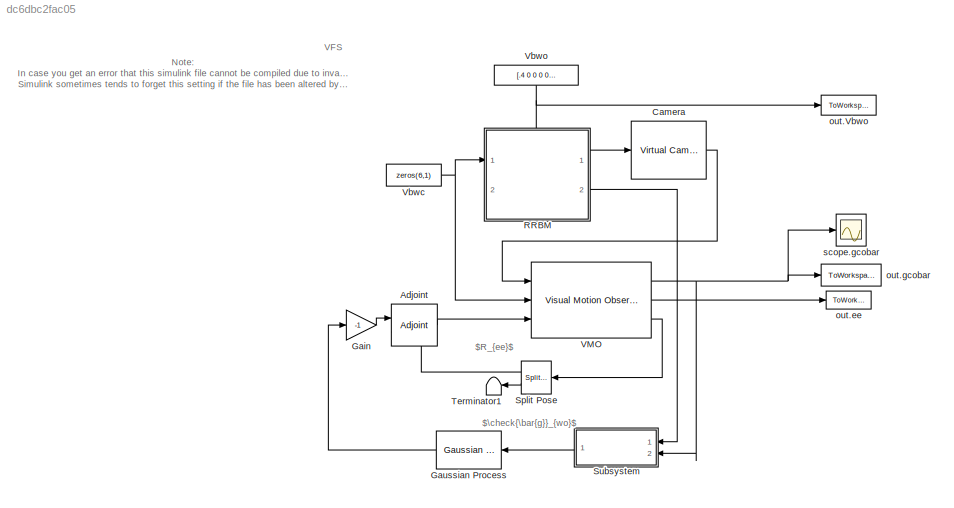
MODEL slx_dc6dbc2fac05
KIND model
CONFIG AbsTol = auto
CONFIG EnableMultiTasking = off
CONFIG FixedStep = 0.001
CONFIG MaxStep = auto
CONFIG MinStep = auto
CONFIG RelTol = 1e-3
CONFIG SampleTimeConstraint = Unconstrained
CONFIG SolverName = VariableStepAuto
CONFIG StartTime = 0.0
CONFIG StopTime = 20
WORKSPACE source: mxarray member
WORKSPACE lambda = 20
WORKSPACE po = [0 0.5 0 -0.5 0 0 0 0 0.5 0 -0.5 0]
BLOCK [Reference] Adjoint  REF=simlib_vpc_basic/Adjoint
  NameLocation = top
  Ports = [2, 1]
  SourceBlock = simlib_vpc_basic/Adjoint
  SourceProductName = VPC Library
  SourceType = Adjoint Matrix [V1]
BLOCK [Reference] Camera  REF=simlib_vpc_basic/Virtual Camera
  Ports = [1, 1]
  SourceBlock = simlib_vpc_basic/Virtual Camera
  SourceProductName = VPC Library
  SourceType = Virtual Camera model [V1]
BLOCK [Gain] Gain
  Gain = -1
BLOCK [Reference] Gaussian Process  REF=simlib_vpc_gp/Gaussian Process
  NameLocation = top
  Ports = [1, 1]
  SourceBlock = simlib_vpc_gp/Gaussian Process
  SourceProductName = VPC Library
  SourceType = Gaussian Process [V1]
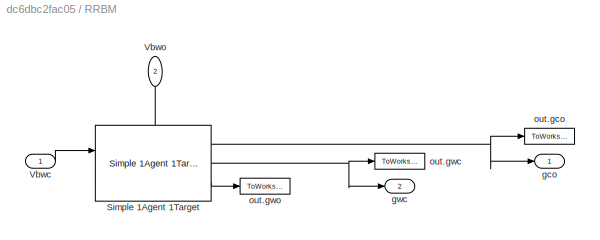
BLOCK [SubSystem] RRBM
  PortSchema = {"entries":[{"content":{"sides":[{"content":{"connectorIds":["In1"]},"type":"ConnectorPlacement.EquallySpacedRectSide","uuid":"ce1006a6-ff18-4db7-ad69-3a60144a672f"},{"content":{"connectorIds":["Out1","Out2"],"side":"RIGHT"},"type":"ConnectorPlacement.EquallySpacedRectSide","uuid":"9f6b7cf2-eb23-4db0-862a-f9244538bf77"},{"content":{"connectorIds":["In2"],"side":"TOP"},"type":"ConnectorPlacement.Eq...<+396ch>
  Ports = [2, 2]
  RequestExecContextInheritance = off
BLOCK [Reference] RRBM/Simple 1Agent 1Target  REF=simlib_vpc_basic/Simple 1Agent 1Target
  Ports = [2, 3]
  SourceBlock = simlib_vpc_basic/Simple 1Agent 1Target
  SourceProductName = VPC Library
  SourceType = Simple 1Agent 1 Target block [V1]
BLOCK [Inport] RRBM/Vbwc
BLOCK [Inport] RRBM/Vbwo
  NameLocation = left
  Port = 2
BLOCK [Outport] RRBM/gco
  NameLocation = right
BLOCK [Outport] RRBM/gwc
  NameLocation = right
  Port = 2
BLOCK [ToWorkspace] RRBM/out.gco
  FixptAsFi = on
  MaxDataPoints = inf
  NameLocation = right
  Ports = [1]
  SampleTime = -1
  SaveFormat = Structure With Time
  VariableName = gco
BLOCK [ToWorkspace] RRBM/out.gwc
  FixptAsFi = on
  MaxDataPoints = inf
  NameLocation = right
  Ports = [1]
  SampleTime = -1
  SaveFormat = Structure With Time
  VariableName = gwc
BLOCK [ToWorkspace] RRBM/out.gwo
  FixptAsFi = on
  MaxDataPoints = inf
  NameLocation = right
  Ports = [1]
  SampleTime = -1
  SaveFormat = Structure With Time
  VariableName = gwo
BLOCK [Reference] Split Pose  REF=simlib_vpc_coremath/Split Pose
  NameLocation = top
  Ports = [1, 2]
  SourceBlock = simlib_vpc_coremath/Split Pose
  SourceProductName = VPC Library
  SourceType = Split pose [V1]
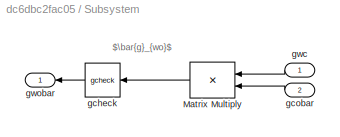
BLOCK [SubSystem] Subsystem
  Ports = [2, 1]
  RequestExecContextInheritance = off
BLOCK [Product] Subsystem/Matrix Multiply
  Multiplication = Matrix(*)
  NameLocation = top
  Ports = [2, 1]
BLOCK [Reference] Subsystem/gcheck  REF=simlib_vpc_coremath/gcheck
  Ports = [1, 1]
  SourceBlock = simlib_vpc_coremath/gcheck
  SourceProductName = VPC Library
  SourceType = Check Transform [V1]
BLOCK [Inport] Subsystem/gcobar
  NameLocation = right
  Port = 2
BLOCK [Inport] Subsystem/gwc
  NameLocation = right
BLOCK [Outport] Subsystem/gwobar
BLOCK [Terminator] Terminator1
BLOCK [Reference] VMO  REF=simlib_vpc_basic/Visual Motion Observer
  Ports = [3, 3]
  SourceBlock = simlib_vpc_basic/Visual Motion Observer
  SourceProductName = VPC Library
  SourceType = Visual Motion Observer [V1]
BLOCK [Constant] Vbwc
  Value = zeros(6,1)
BLOCK [Constant] Vbwo
  NameLocation = right
  Value = [.4 0 0 0 0 -pi/6]
BLOCK [ToWorkspace] out.Vbwo
  FixptAsFi = on
  MaxDataPoints = inf
  NameLocation = right
  Ports = [1]
  SampleTime = -1
  SaveFormat = Structure With Time
  VariableName = Vbwo
BLOCK [ToWorkspace] out.ee
  FixptAsFi = on
  MaxDataPoints = inf
  NameLocation = right
  Ports = [1]
  SampleTime = -1
  SaveFormat = Structure With Time
  VariableName = ee
BLOCK [ToWorkspace] out.gcobar
  FixptAsFi = on
  MaxDataPoints = inf
  NameLocation = right
  Ports = [1]
  SampleTime = -1
  SaveFormat = Structure With Time
  VariableName = gcobar
BLOCK [Scope] scope.gcobar
  Floating = off
  NameLocation = right
  NumInputPorts = 1
  Ports = [1]
  ScopeSpecificationString = Simulink.scopes.TimeScopeBlockCfg('CurrentConfiguration', extmgr.ConfigurationSet(extmgr.Configuration('Core','General UI',true),extmgr.Configuration('Core','Source UI',true),extmgr.Configuration('Sources','WiredSimulink',true),extmgr.Configuration('Visuals','Time Domain',true,'SerializedDisplays',{struct('MinYLimReal','-44571.05179','MaxYLimReal','401135.54571','YLabelReal','','MinYLimMag','   0....<+1871ch>
ANNOTATION (root): Note: In case you get an error that this simulink file cannot be compiled due to invalid constructs used in the GP block, ensure that the GP block inherits the fastest discrete sample time if you use a variable step solver! Simulink sometimes tends to forget this setting if the file has been altered by library block updates...
ANNOTATION (root): $R_{ee}$
ANNOTATION (root): $\check{\bar{g}}_{wo}$
ANNOTATION (root): VFS
ANNOTATION Subsystem: $\bar{g}_{wo}$
LINE Adjoint:1 -> VMO:3
LINE Camera:1 -> VMO:1
LINE Gain:1 -> Adjoint:1
LINE Gaussian Process:1 -> Gain:1
NET RRBM/Simple 1Agent 1Target:1 -> RRBM/gco:1, RRBM/out.gco:1
NET RRBM/Simple 1Agent 1Target:2 -> RRBM/gwc:1, RRBM/out.gwc:1
LINE RRBM/Simple 1Agent 1Target:3 -> RRBM/out.gwo:1
LINE RRBM/Vbwc:1 -> RRBM/Simple 1Agent 1Target:1
LINE RRBM/Vbwo:1 -> RRBM/Simple 1Agent 1Target:2
LINE RRBM:1 -> Camera:1
LINE RRBM:2 -> Subsystem:1
LINE Split Pose:1 -> Adjoint:2
LINE Split Pose:2 -> Terminator1:1
LINE Subsystem/Matrix Multiply:1 -> Subsystem/gcheck:1
LINE Subsystem/gcheck:1 -> Subsystem/gwobar:1
LINE Subsystem/gcobar:1 -> Subsystem/Matrix Multiply:2
LINE Subsystem/gwc:1 -> Subsystem/Matrix Multiply:1
LINE Subsystem:1 -> Gaussian Process:1
NET VMO:1 -> Subsystem:2, out.gcobar:1, scope.gcobar:1
LINE VMO:2 -> out.ee:1
LINE VMO:3 -> Split Pose:1
NET Vbwc:1 -> RRBM:1, VMO:2
NET Vbwo:1 -> RRBM:2, out.Vbwo:1
note: NET lines group one-source signal fan-out (src -> all destinations, sorted); 1:1 wires keep LINE
